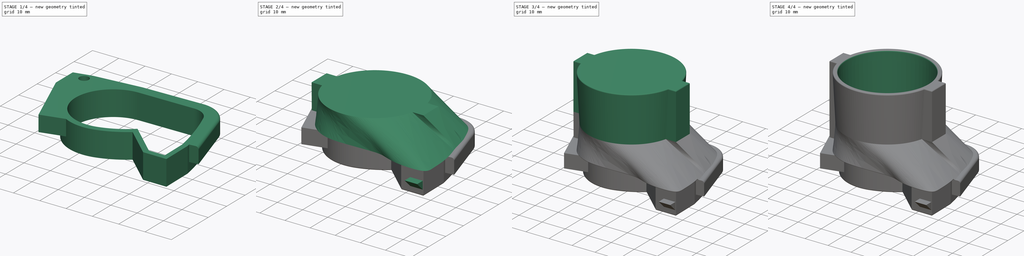
[diagram: build sequence overview — one tinted view per stage of 4, left to right]
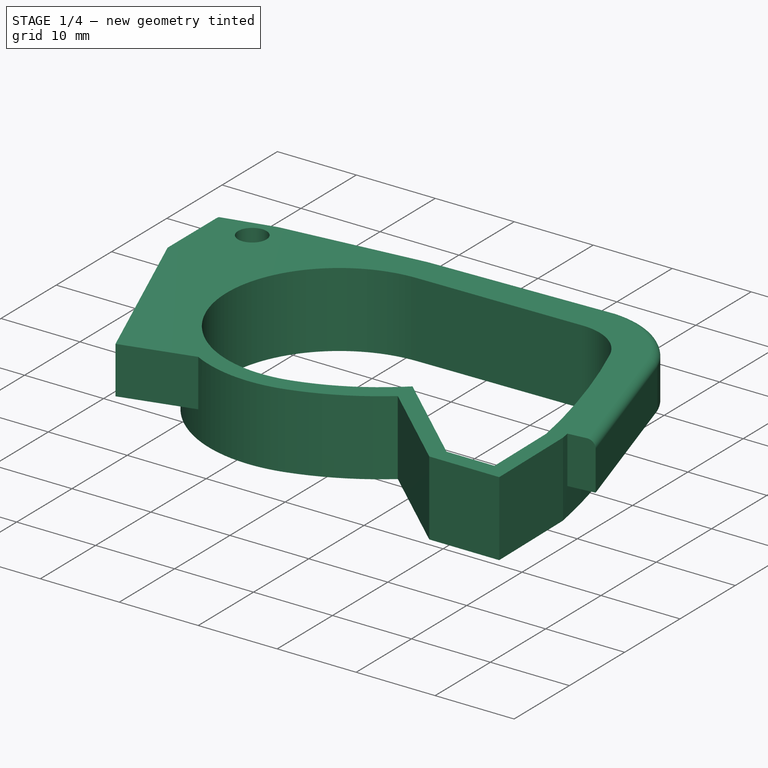
[diagram: stage 1 of 4 — iso view after this stage's code; geometry added in this stage tinted green]
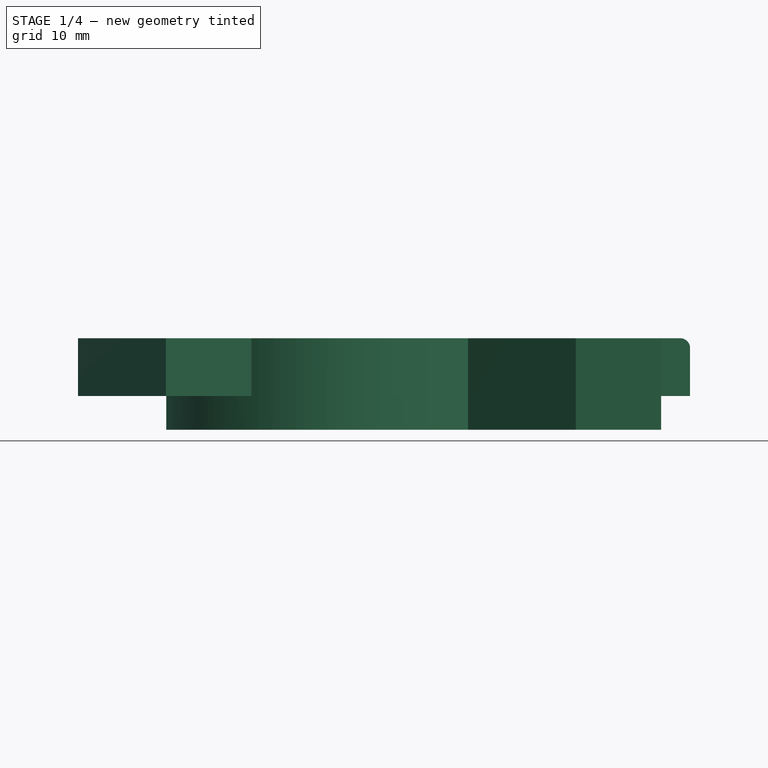
[diagram: stage 1 of 4 — front view after this stage's code; geometry added in this stage tinted green]
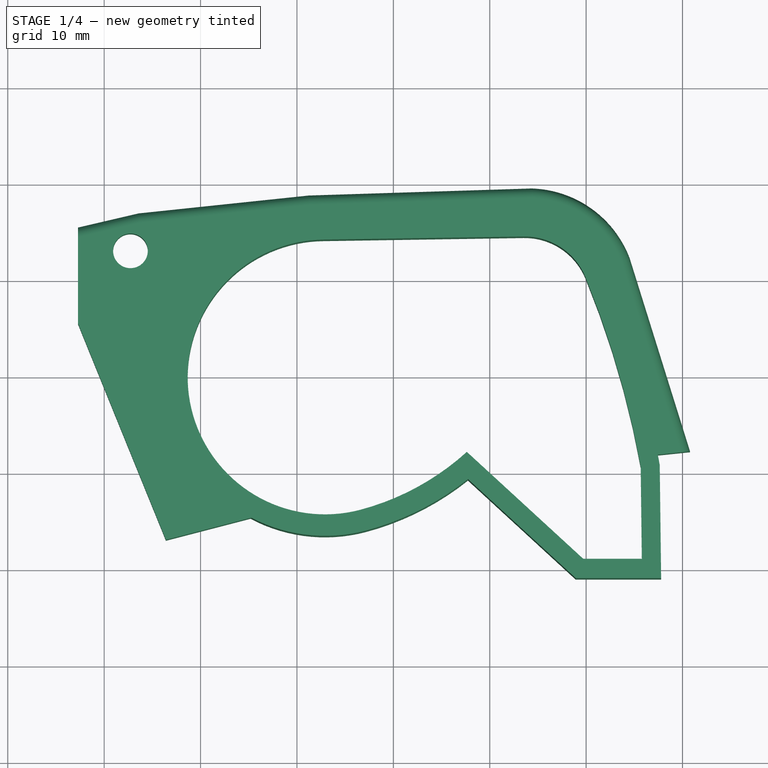
[diagram: stage 1 of 4 — top view after this stage's code; geometry added in this stage tinted green]
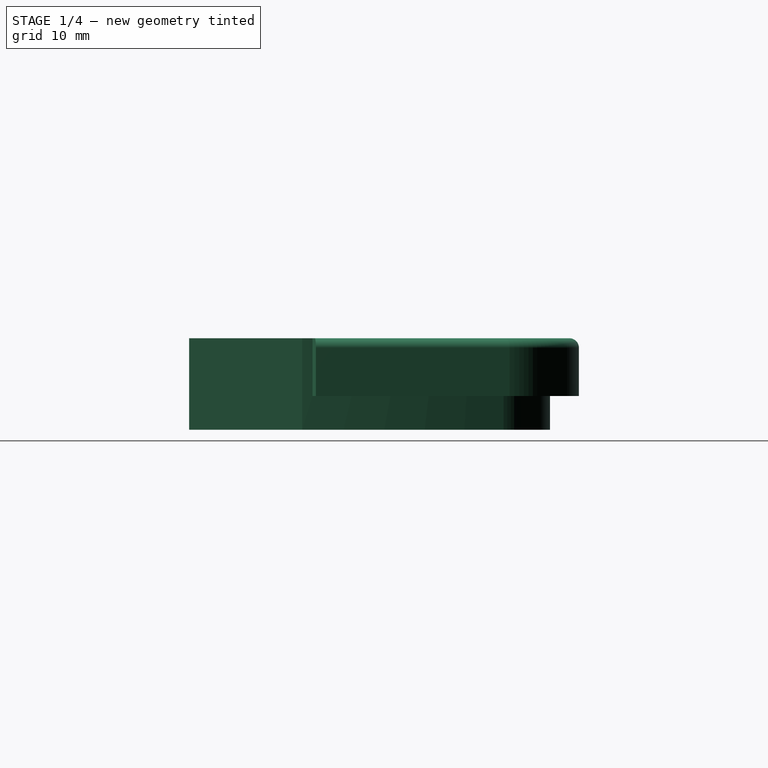
[diagram: stage 1 of 4 — right view after this stage's code; geometry added in this stage tinted green]
FCSTD DOCUMENT  (FreeCAD 0.20R27319 (Git))
Label: PlanerNozzle#2
License: All rights reserved
LicenseURL: http://en.wikipedia.org/wiki/All_rights_reserved
objects: Sketcher::SketchObject×9, PartDesign::Fillet×5, PartDesign::Pad×3, PartDesign::AdditiveLoft×2, PartDesign::SubtractiveLoft×2, Spreadsheet::Sheet×1, Image::ImagePlane×1, PartDesign::Body×1
note: 34 computed .brp shape members not serialized (recipe doc carries the construction recipe); baked Part::Feature solids carry a one-line shape summary decoded from their .brp

FEATURE [Spreadsheet::Sheet] Spreadsheet
  cells = A1=Scale; B1(Scale)=0.15; C1=29; B2=0.15; B3=0.31
FEATURE [Image::ImagePlane] ImagePlane
  Placement = pos=(0,-1,-5.1) rot=(0,0,1;0rad)
  XSize = 68.4915
  YSize = 44.4045
  expr: XSize = 456.61 * Spreadsheet.Scale
  expr: YSize = 296.03 * Spreadsheet.Scale
FEATURE [Sketcher::SketchObject] Sketch004
  AttachmentOffset = pos=(0,0,12) rot=(0,0,1;0rad)
  FullyConstrained = false
  Placement = pos=(0,0,16) rot=(0,0,1;0rad)
  Support = -> [XY_Plane]
  sketch-geometry (8):
    g0: ArcOfCircle CenterX=-6.38319 CenterY=0.230304 CenterZ=0 NormalX=0 NormalY=0 NormalZ=1 AngleXU=0 Radius=18.5 StartAngle=3.37918 EndAngle=6.0456
    g1: LineSegment StartX=-28.5159 StartY=4.39463 StartZ=0 EndX=-28.5159 EndY=-4.12375 EndZ=0
    g2: LineSegment StartX=15.9949 StartY=4.39463 StartZ=0 EndX=15.9949 EndY=-4.12375 EndZ=0
    g3: ArcOfCircle CenterX=-6.38319 CenterY=0.230304 CenterZ=0 NormalX=0 NormalY=0 NormalZ=1 AngleXU=0 Radius=18.5 StartAngle=0.227044 EndAngle=2.91455
    g4: LineSegment StartX=-28.5159 StartY=4.39463 StartZ=0 EndX=-24.4084 EndY=4.39463 EndZ=0
    g5: LineSegment StartX=-28.5159 StartY=-4.12375 StartZ=0 EndX=-24.3635 EndY=-4.12375 EndZ=0
    g6: LineSegment StartX=15.9949 StartY=4.39463 StartZ=0 EndX=11.642 EndY=4.39463 EndZ=0
    g7: LineSegment StartX=15.9949 StartY=-4.12375 StartZ=0 EndX=11.5971 EndY=-4.12375 EndZ=0
  constraints (15):
    c: Diameter(g0) = 37
    c: Equal(g0,g3)
    c: Coincident(g0,g3)
    c: Coincident(g4,g1)
    c: Coincident(g4,g3)
    c: Horizontal(g4)
    c: Coincident(g5,g1)
    c: Coincident(g5,g0)
    c: Horizontal(g5)
    c: Coincident(g6,g2)
    c: Coincident(g6,g3)
    c: Horizontal(g6)
    c: Coincident(g7,g2)
    c: Coincident(g7,g0)
    c: Horizontal(g7)
FEATURE [Sketcher::SketchObject] Sketch
  AttachmentOffset = pos=(0,0,-6) rot=(0,1,0;3.14159rad)
  FullyConstrained = false
  MapMode = 5
  Placement = pos=(0,0,6) rot=(0,0,1;0rad)
  Support = -> [XY_Plane]
  sketch-geometry (20):
    g0: ArcOfCircle CenterX=13.6146 CenterY=7.66179 CenterZ=0 NormalX=0 NormalY=0 NormalZ=1 AngleXU=0 Radius=8.8325 StartAngle=0.471596 EndAngle=1.58634
    g1: ArcOfCircle CenterX=-7.8333 CenterY=0.973365 CenterZ=0 NormalX=0 NormalY=0 NormalZ=1 AngleXU=0 Radius=15.1867 StartAngle=1.58634 EndAngle=2.18773
    g2: ArcOfCircle CenterX=-10.2795 CenterY=11.9075 CenterZ=0 NormalX=0 NormalY=0 NormalZ=1 AngleXU=0 Radius=28.8964 StartAngle=4.97292 EndAngle=5.38581
    g3: LineSegment StartX=-8.06937 StartY=16.1582 StartZ=0 EndX=13.4773 EndY=16.4932 EndZ=0
    g4: LineSegment StartX=27.6353 StartY=-9.21116 StartZ=0 EndX=27.7807 EndY=-20.9535 EndZ=0
    g5: LineSegment StartX=7.74209 StartY=-10.6807 StartZ=0 EndX=18.9241 EndY=-20.9535 EndZ=0
    g6: LineSegment StartX=18.9241 StartY=-20.9535 StartZ=0 EndX=27.7807 EndY=-20.9535 EndZ=0
    g7: ArcOfCircle CenterX=-70.8847 CenterY=-26.8834 CenterZ=0 NormalX=0 NormalY=0 NormalZ=1 AngleXU=0 Radius=100.092 StartAngle=0.17749 EndAngle=0.39545
    g8: ArcOfCircle CenterX=-7.0778 CenterY=-0.0832202 CenterZ=0 NormalX=0 NormalY=0 NormalZ=1 AngleXU=0 Radius=16.4856 StartAngle=2.18803 EndAngle=4.97262
    g9: ArcOfCircle CenterX=-7.08236 CenterY=-0.085358 CenterZ=0 NormalX=0 NormalY=0 NormalZ=1 AngleXU=0 Radius=14.257 StartAngle=1.77636 EndAngle=4.97292
    g10: ArcOfCircle CenterX=-7.08236 CenterY=-0.085358 CenterZ=0 NormalX=0 NormalY=0 NormalZ=1 AngleXU=0 Radius=14.257 StartAngle=1.58634 EndAngle=1.77636
    g11: ArcOfCircle CenterX=-10.2795 CenterY=11.9075 CenterZ=0 NormalX=0 NormalY=0 NormalZ=1 AngleXU=0 Radius=26.6686 StartAngle=4.97292 EndAngle=5.44845
    g12: LineSegment StartX=7.62505 StartY=-7.85725 StartZ=0 EndX=19.7033 EndY=-18.9535 EndZ=0
    g13: LineSegment StartX=19.7033 StartY=-18.9535 StartZ=0 EndX=25.7807 EndY=-18.9535 EndZ=0
    g14: LineSegment StartX=25.7807 StartY=-18.9535 StartZ=0 EndX=25.6622 EndY=-9.3809 EndZ=0
    g15: LineSegment StartX=-7.30398 StartY=14.1699 StartZ=0 EndX=13.5084 EndY=14.4935 EndZ=0
    g16: ArcOfCircle CenterX=13.6146 CenterY=7.66179 CenterZ=0 NormalX=0 NormalY=0 NormalZ=1 AngleXU=0 Radius=6.8325 StartAngle=0.388089 EndAngle=1.58634
    g17: ArcOfCircle CenterX=-70.8847 CenterY=-26.8834 CenterZ=0 NormalX=0 NormalY=0 NormalZ=1 AngleXU=0 Radius=98.1205 StartAngle=0.179338 EndAngle=0.388089
    g18: LineSegment StartX=3.38665 StartY=16.3363 StartZ=0 EndX=3.41774 EndY=14.3366 EndZ=0
    g19: LineSegment StartX=11.0076 StartY=-13.6806 StartZ=0 EndX=12.3606 EndY=-12.2078 EndZ=0
  constraints (37):
    c: Tangent(g3,g1) = 1.5708
    c: Coincident(g6,g5)
    c: Block(g1)
    c: Block(g2)
    c: Block(g5)
    c: Block(g6)
    c: Block(g4)
    c: Block(g0)
    c: Block(g7)
    c: Coincident(g8,g2)
    c: Tangent(g10,g9) = -1.5708
    c: Coincident(g11,g2)
    c: Tangent(g11,g9) = -1.5708
    c: Coincident(g12,g13)
    c: Horizontal(g13)
    c: Coincident(g13,g14)
    c: Coincident(g10,g15)
    c: Parallel(g15,g3)
    c: Parallel(g12,g5)
    c: Coincident(g11,g12)
    c: Coincident(g16,g0)
    c: Tangent(g16,g15) = 1.5708
    c: Coincident(g7,g17)
    c: Coincident(g17,g14)
    c: Parallel(g14,g4)
    c: DistanceX(g13,g4) = 2
    c: DistanceY(g4,g13) = 2
    c: PointOnObject(g18,g3)
    c: PointOnObject(g18,g15)
    c: Perpendicular(g3,g18)
    c: Distance(g18) = 2
    c: PointOnObject(g19,g5)
    c: Perpendicular(g19,g12)
    c: Distance(g19) = 2
    c: PointOnObject(g19,g12)
    c: Tangent(g16,g17) = -1.5708
    c: Coincident(g8,g1)
FEATURE [Sketcher::SketchObject] Sketch007
  FullyConstrained = false
  Placement = pos=(0,0,6) rot=(0,0,1;0rad)
  Support = -> [XY_Plane]
  sketch-geometry (50):
    g0: LineSegment StartX=-23.8392 StartY=4.39744 StartZ=0 EndX=-28.4368 EndY=4.39744 EndZ=0
    g1: LineSegment StartX=-28.4368 StartY=4.39744 StartZ=0 EndX=-28.4368 EndY=-4.14384 EndZ=0
    g2: LineSegment StartX=-28.4368 StartY=-4.14384 StartZ=0 EndX=-24.2957 EndY=-4.14384 EndZ=0
    g3: LineSegment StartX=25.0426 StartY=5.73672 StartZ=0 EndX=25.4758 EndY=4.06879 EndZ=0
    g4: LineSegment StartX=25.4758 StartY=4.06879 StartZ=0 EndX=26.658 EndY=-1.02928 EndZ=0
    g5: LineSegment StartX=26.658 StartY=-1.02928 StartZ=0 EndX=27.1052 EndY=-2.6711 EndZ=0
    g6-g16: Circle x11 (B-spline internal-alignment scaffolding for g17; pole/knot coordinates omitted)
    g17: BSplineCurve PolesCount=11 KnotsCount=9 Degree=3 IsPeriodic=0
    g18-g26: GeomPoint x9 (B-spline internal-alignment scaffolding for g17; pole/knot coordinates omitted)
    g27-g38: Circle x12 (B-spline internal-alignment scaffolding for g39; pole/knot coordinates omitted)
    g39: BSplineCurve PolesCount=12 KnotsCount=10 Degree=3 IsPeriodic=0
    g40-g49: GeomPoint x10 (B-spline internal-alignment scaffolding for g39; pole/knot coordinates omitted)
  constraints (20):
    c: Horizontal(g0)
    c: Coincident(g1,g0)
    c: Vertical(g1)
    c: Coincident(g2,g1)
    c: Horizontal(g2)
    c: Coincident(g3,g4)
    c: Coincident(g4,g5)
    c: Coincident(g17,g0)
    c: Weight(g6) = 1
    c: Equal(g6, g7-g16) x10
    c: Coincident(g17,g3)
    c: InternalAlignment(g6-g16 -> g17) x11
    c: InternalAlignment(g18-g26 -> g17) x9
    c: Coincident(g39,g5)
    c: Weight(g27) = 1
    c: Equal(g27, g28-g38) x11
    c: Coincident(g39,g2)
    c: InternalAlignment(g27-g38 -> g39) x12
    c: InternalAlignment(g40-g49 -> g39) x10
    c: Block(g1)
FEATURE [Sketcher::SketchObject] Sketch008
  FullyConstrained = false
  Placement = pos=(0,0,6) rot=(0,0,1;0rad)
  Support = -> [XY_Plane]
  sketch-geometry (42):
    g0-g19: Circle x20 (B-spline internal-alignment scaffolding for g20; pole/knot coordinates omitted)
    g20: BSplineCurve PolesCount=20 KnotsCount=21 Degree=3 IsPeriodic=1
    g21-g41: GeomPoint x21 (B-spline internal-alignment scaffolding for g20; pole/knot coordinates omitted)
  constraints (5):
    c: Weight(g0) = 1
    c: Equal(g0, g1-g13) x13
    c: Equal(g0, g15-g19) x5
    c: InternalAlignment(g0-g19 -> g20) x20
    c: InternalAlignment(g21-g41 -> g20) x21
FEATURE [Sketcher::SketchObject] Sketch009
  AttachmentOffset = pos=(0,0,12) rot=(0,0,1;0rad)
  FullyConstrained = true
  Placement = pos=(0,0,16) rot=(0,0,1;0rad)
  sketch-geometry (1):
    g0: Circle CenterX=-6.38319 CenterY=0.230304 CenterZ=0 NormalX=0 NormalY=0 NormalZ=1 AngleXU=0 Radius=17.25
  constraints (2):
    c: Diameter(g0) = 34.5
    c: Block(g0)
FEATURE [Sketcher::SketchObject] Sketch005
  AttachmentOffset = pos=(0,0,36) rot=(0,0,1;0rad)
  ExternalGeometry = -> [Sketch004,Sketch009]
  FullyConstrained = true
  Placement = pos=(0,0,36) rot=(0,0,1;0rad)
  Support = -> [XY_Plane]
  sketch-geometry (8):
    g0: ArcOfCircle CenterX=-6.38319 CenterY=0.230304 CenterZ=0 NormalX=0 NormalY=0 NormalZ=1 AngleXU=0 Radius=19.5 StartAngle=0.215213 EndAngle=2.92638
    g1: ArcOfCircle CenterX=-6.38319 CenterY=0.230304 CenterZ=0 NormalX=0 NormalY=0 NormalZ=1 AngleXU=0 Radius=19.5 StartAngle=3.36678 EndAngle=6.058
    g2: LineSegment StartX=-25.4333 StartY=4.39463 StartZ=0 EndX=-28.5159 EndY=4.39463 EndZ=0
    g3: LineSegment StartX=-28.5159 StartY=-4.12375 StartZ=0 EndX=-25.3909 EndY=-4.12375 EndZ=0
    g4: LineSegment StartX=-28.5159 StartY=4.39463 StartZ=0 EndX=-28.5159 EndY=-4.12375 EndZ=0
    g5: LineSegment StartX=12.667 StartY=4.39463 StartZ=0 EndX=15.9949 EndY=4.39463 EndZ=0
    g6: LineSegment StartX=15.9949 StartY=4.39463 StartZ=0 EndX=15.9949 EndY=-4.12375 EndZ=0
    g7: LineSegment StartX=15.9949 StartY=-4.12375 StartZ=0 EndX=12.6245 EndY=-4.12375 EndZ=0
  constraints (20):
    c: Diameter(g0) = 39
    c: Equal(g0,g1)
    c: Coincident(g0,g1)
    c: Horizontal(g0,g-3)
    c: Horizontal(g0,g-4)
    c: Horizontal(g1,g-4)
    c: Horizontal(g-3,g1)
    c: Coincident(g0,g2)
    c: Coincident(g2,g-3)
    c: Coincident(g-3,g3)
    c: Coincident(g3,g1)
    c: Coincident(g2,g4)
    c: Coincident(g4,g3)
    c: Coincident(g0,g5)
    c: Coincident(g5,g-4)
    c: Coincident(g5,g6)
    c: Coincident(g6,g-4)
    c: Coincident(g6,g7)
    c: Coincident(g7,g1)
    c: Coincident(g-5,g0)
FEATURE [Sketcher::SketchObject] Sketch010
  AttachmentOffset = pos=(0,0,36) rot=(0,0,1;0rad)
  ExternalGeometry = -> [Sketch009]
  FullyConstrained = true
  Placement = pos=(0,0,36) rot=(0,0,1;0rad)
  Support = -> [XY_Plane]
  sketch-geometry (1):
    g0: Circle CenterX=-6.38319 CenterY=0.230304 CenterZ=0 NormalX=0 NormalY=0 NormalZ=1 AngleXU=0 Radius=17.75
  constraints (2):
    c: Diameter(g0) = 35.5
    c: Coincident(g0,g-3)
FEATURE [Sketcher::SketchObject] Sketch011
  AttacherType = A
  FullyConstrained = false
  MapMode = 5
  Support = -> [XY_Plane]
  sketch-geometry (14):
    g0: Circle CenterX=-27.2731 CenterY=13.0055 CenterZ=0 NormalX=0 NormalY=0 NormalZ=1 AngleXU=0 Radius=1.8
    g1: LineSegment StartX=-32.7193 StartY=15.4311 StartZ=0 EndX=-26.4301 EndY=16.9002 EndZ=0
    g2: LineSegment StartX=-32.7193 StartY=15.4311 StartZ=0 EndX=-32.7181 EndY=5.47 EndZ=0
    g3: LineSegment StartX=-32.7181 StartY=5.47 StartZ=0 EndX=-23.5932 EndY=-16.9853 EndZ=0
    g4: LineSegment StartX=30.7802 StartY=-7.79865 StartZ=0 EndX=26.6318 EndY=-8.23024 EndZ=0
    g5: ArcOfCircle CenterX=14.0009 CenterY=8.23943 CenterZ=0 NormalX=0 NormalY=0 NormalZ=1 AngleXU=0 Radius=11.2555 StartAngle=0.369126 EndAngle=1.53678
    g6: LineSegment StartX=-26.4301 StartY=16.9002 StartZ=0 EndX=-8.77976 EndY=18.7554 EndZ=0
    g7: LineSegment StartX=14.3836 StartY=19.4884 StartZ=0 EndX=-8.77976 EndY=18.7554 EndZ=0
    g8: LineSegment StartX=-23.5932 StartY=-16.9853 StartZ=0 EndX=-14.014 EndY=-14.4965 EndZ=0
    g9: ArcOfCircle CenterX=-7.56686 CenterY=-0.0475203 CenterZ=0 NormalX=0 NormalY=0 NormalZ=1 AngleXU=0 Radius=15.8221 StartAngle=1.60655 EndAngle=4.2927
    g10: LineSegment StartX=-8.13248 StartY=15.7644 StartZ=0 EndX=13.4002 EndY=15.3467 EndZ=0
    g11: LineSegment StartX=24.4982 StartY=12.3004 StartZ=0 EndX=30.7802 EndY=-7.79865 EndZ=0
    g12: ArcOfCircle CenterX=14.0009 CenterY=8.23943 CenterZ=0 NormalX=0 NormalY=0 NormalZ=1 AngleXU=0 Radius=7.13263 StartAngle=0.397079 EndAngle=1.65511
    g13: LineSegment StartX=20.5785 StartY=10.9978 StartZ=0 EndX=26.6318 EndY=-8.23024 EndZ=0
  constraints (16):
    c: Coincident(g1,g6)
    c: Coincident(g6,g7)
    c: Coincident(g5,g7)
    c: Coincident(g9,g10)
    c: Coincident(g8,g9)
    c: Coincident(g3,g8)
    c: Coincident(g1,g2)
    c: Coincident(g2,g3)
    c: Coincident(g11,g5)
    c: Coincident(g4,g11)
    c: Diameter(g0) = 3.6
    c: Block(g9)
    c: Coincident(g12,g5)
    c: Coincident(g12,g10)
    c: Coincident(g13,g12)
    c: Coincident(g13,g4)
FEATURE [PartDesign::Pad] Pad  label="Base"
  Direction = (0,0,1)
  Length = 6
  Length2 = 0
  Profile = -> Sketch011
  ReferenceAxis = -> Sketch011 [N_Axis]
  Type = 0
FEATURE [PartDesign::Fillet] Fillet  label="BaseFillet"
  Base = -> Pad [Edge10,Edge13,Edge16,Edge19,Edge22]
  BaseFeature = -> Pad
  Radius = 1
  SupportTransform = false
FEATURE [PartDesign::Pad] Pad001  label="Rim"
  BaseFeature = -> Fillet
  Direction = (-1e-16,0,1)
  Length = 9.5
  Length2 = 0
  Profile = -> Sketch
  ReferenceAxis = -> Sketch [N_Axis]
  Reversed = true
  Type = 0
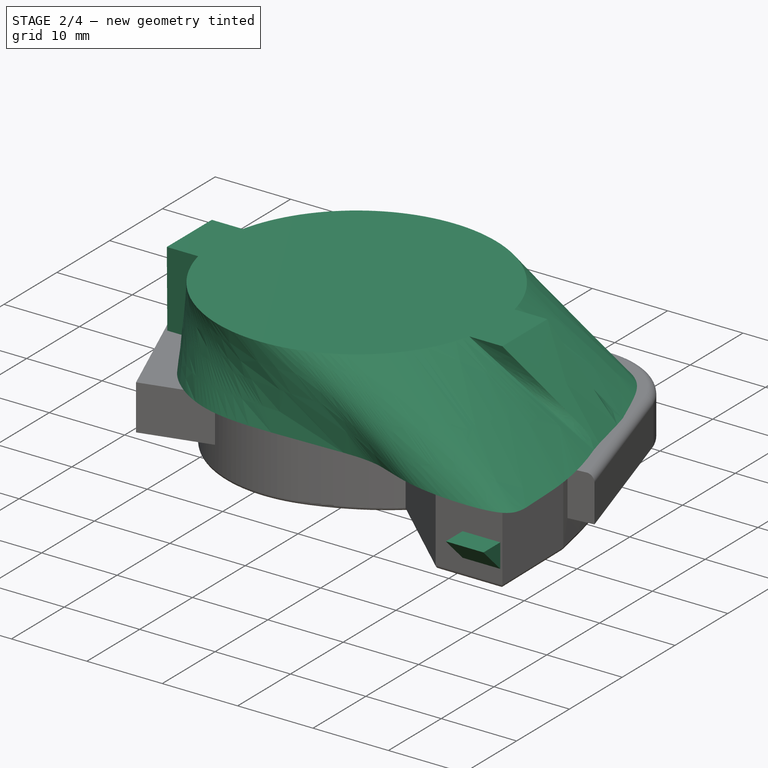
[diagram: stage 2 of 4 — iso view after this stage's code; geometry added in this stage tinted green]
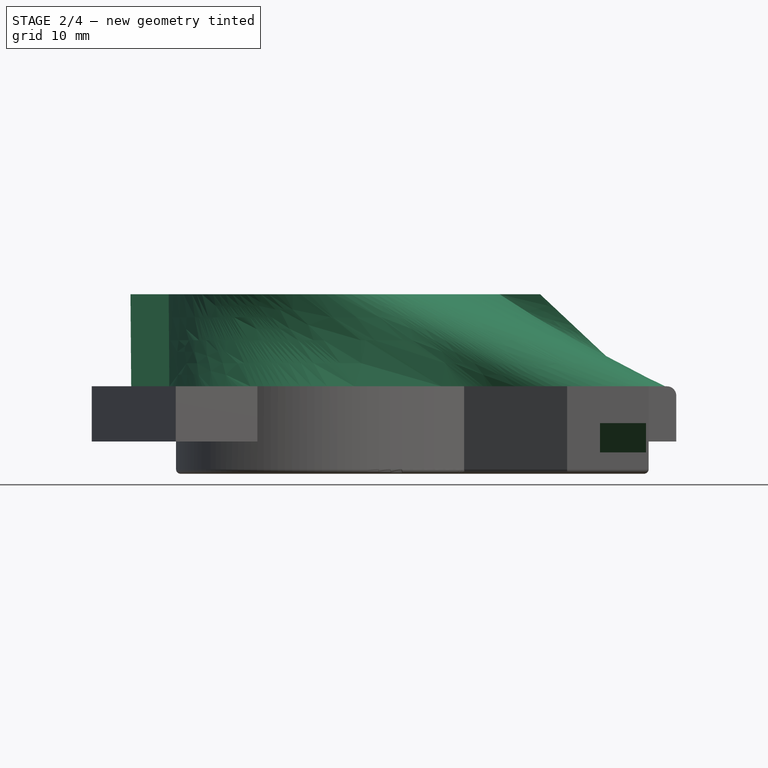
[diagram: stage 2 of 4 — front view after this stage's code; geometry added in this stage tinted green]
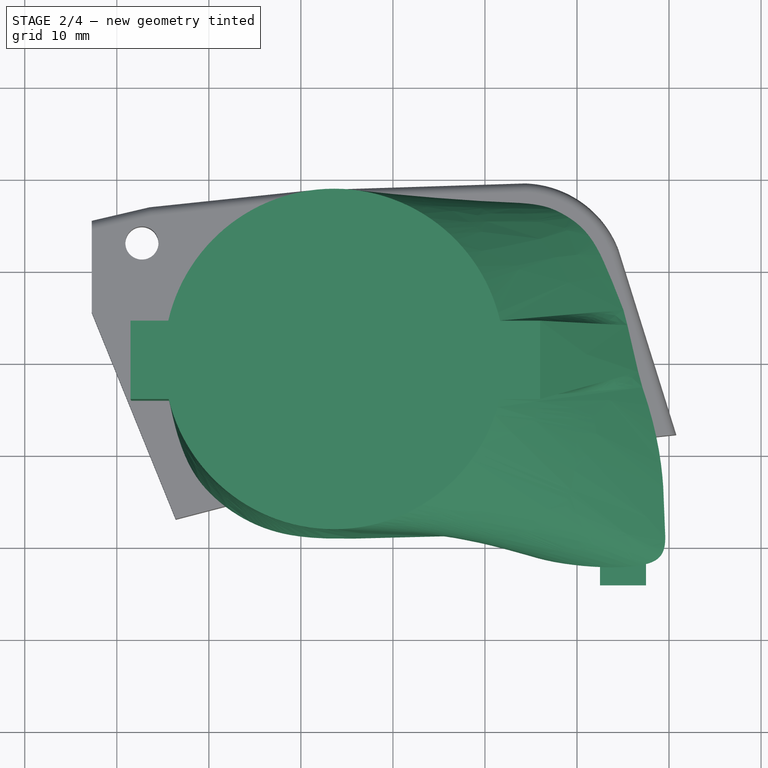
[diagram: stage 2 of 4 — top view after this stage's code; geometry added in this stage tinted green]
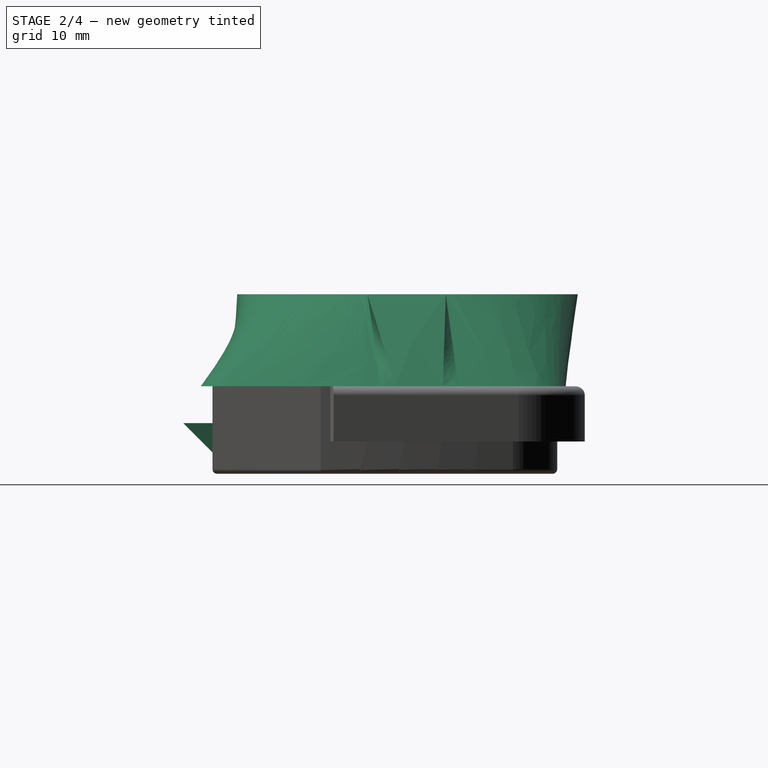
[diagram: stage 2 of 4 — right view after this stage's code; geometry added in this stage tinted green]
FEATURE [Sketcher::SketchObject] Sketch006
  AttachmentOffset = pos=(0,1,27.5) rot=(0,0,1;0rad)
  ExternalGeometry = -> [Pad001]
  FullyConstrained = false
  Placement = pos=(27.5,0,0) rot=(0.57735,0.57735,0.57735;2.0944rad)
  Support = -> [YZ_Plane]
  sketch-geometry (4):
    g0: LineSegment StartX=-18.9221 StartY=2 StartZ=0 EndX=-18.9221 EndY=-2.27636 EndZ=0
    g1: LineSegment StartX=-18.9221 StartY=-2.27636 StartZ=0 EndX=-19.8606 EndY=-2.27636 EndZ=0
    g2: LineSegment StartX=-18.9221 StartY=2 StartZ=0 EndX=-24.137 EndY=2 EndZ=0
    g3: LineSegment StartX=-24.137 StartY=2 StartZ=0 EndX=-19.8606 EndY=-2.27636 EndZ=0
  constraints (9):
    c: Coincident(g0,g1)
    c: Horizontal(g1)
    c: Vertical(g0)
    c: Horizontal(g2)
    c: Coincident(g2,g3)
    c: Coincident(g3,g1)
    c: Coincident(g0,g2)
    c: DistanceY(g2,g-3) = 3
    c: Angle(g3,g2) = 0.785398
FEATURE [PartDesign::Fillet] Fillet005  label="RimFillet"
  Base = -> Pad001 [Edge49,Edge46,Edge44,Edge86,Edge87,Edge88,Edge89,Edge54,Edge50]
  BaseFeature = -> Pad001
  Radius = 0.5
  SupportTransform = false
FEATURE [PartDesign::Pad] Pad002  label="Tab"
  BaseFeature = -> Fillet005
  Direction = (1,0,0)
  Length = 5
  Length2 = 10
  Profile = -> Sketch006
  ReferenceAxis = -> Sketch006 [N_Axis]
  Reversed = true
  Type = 0
FEATURE [PartDesign::AdditiveLoft] AdditiveLoft  label="TransitionOuterLoft"
  BaseFeature = -> Pad002
  Closed = false
  Profile = -> Sketch007
  Ruled = false
  Sections = -> [Sketch004]
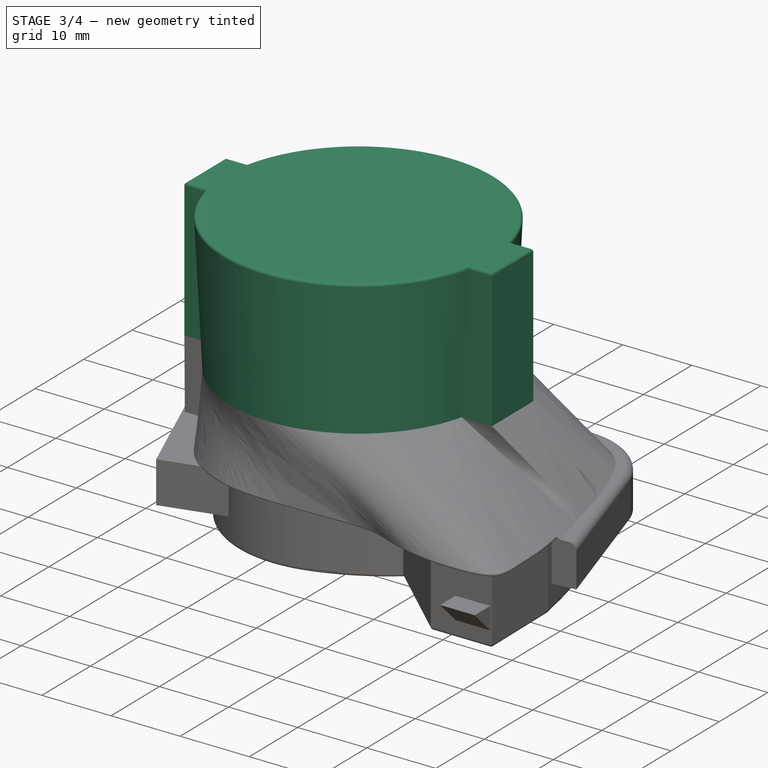
[diagram: stage 3 of 4 — iso view after this stage's code; geometry added in this stage tinted green]
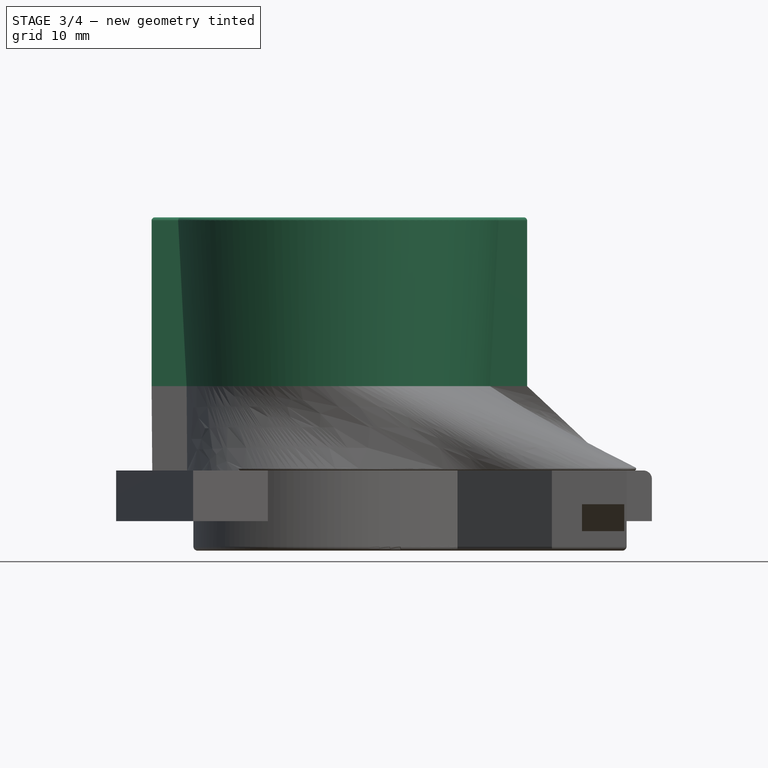
[diagram: stage 3 of 4 — front view after this stage's code; geometry added in this stage tinted green]
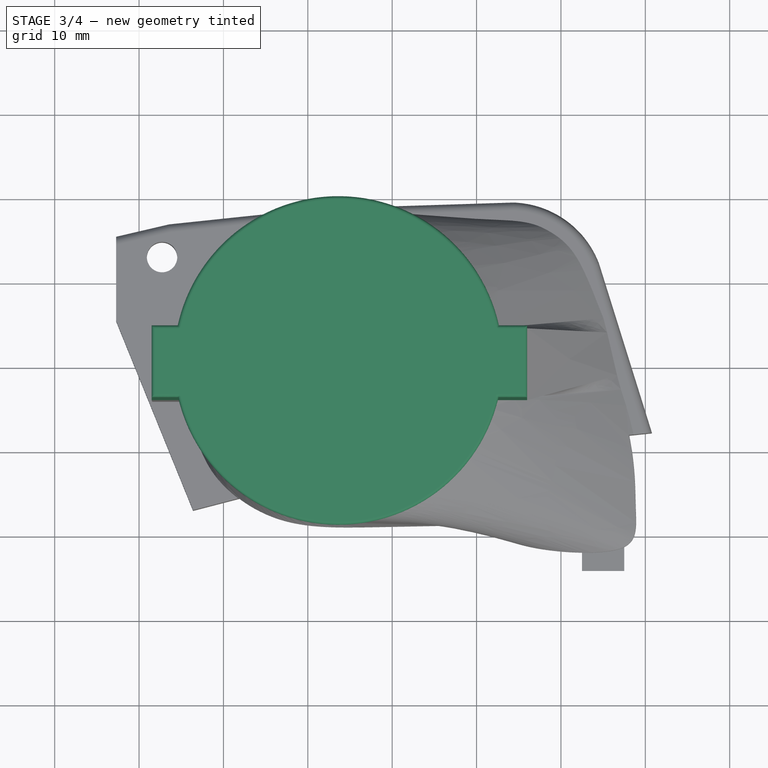
[diagram: stage 3 of 4 — top view after this stage's code; geometry added in this stage tinted green]
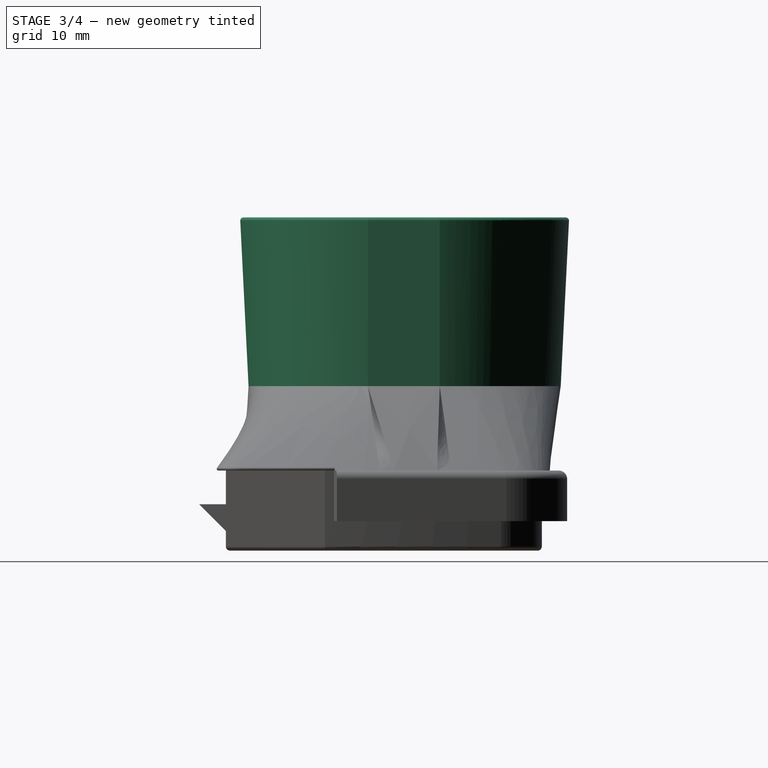
[diagram: stage 3 of 4 — right view after this stage's code; geometry added in this stage tinted green]
FEATURE [PartDesign::AdditiveLoft] AdditiveLoft001  label="OuterLoft"
  BaseFeature = -> AdditiveLoft
  Closed = false
  Profile = -> Sketch004
  Ruled = false
  Sections = -> [Sketch005]
FEATURE [PartDesign::Fillet] Fillet007  label="OuterFillet"
  Base = -> AdditiveLoft001 [Face66]
  BaseFeature = -> AdditiveLoft001
  Radius = 0.4
  SupportTransform = false
FEATURE [PartDesign::Fillet] Fillet006  label="LoftFillet"
  Base = -> Fillet007 [Edge13]
  BaseFeature = -> Fillet007
  Radius = 0.2
  SupportTransform = false
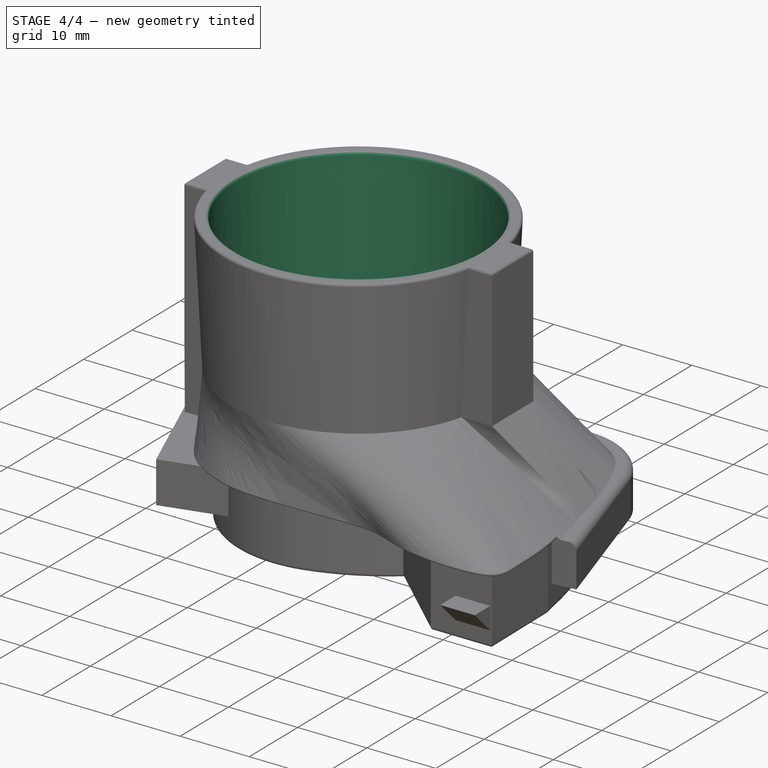
[diagram: stage 4 of 4 — iso view after this stage's code; geometry added in this stage tinted green]
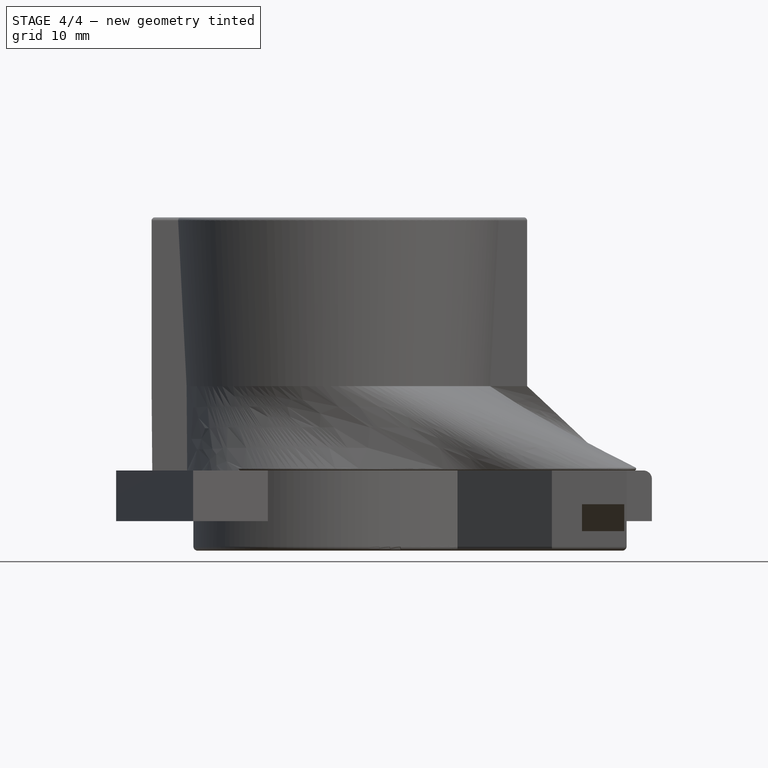
[diagram: stage 4 of 4 — front view after this stage's code; geometry added in this stage tinted green]
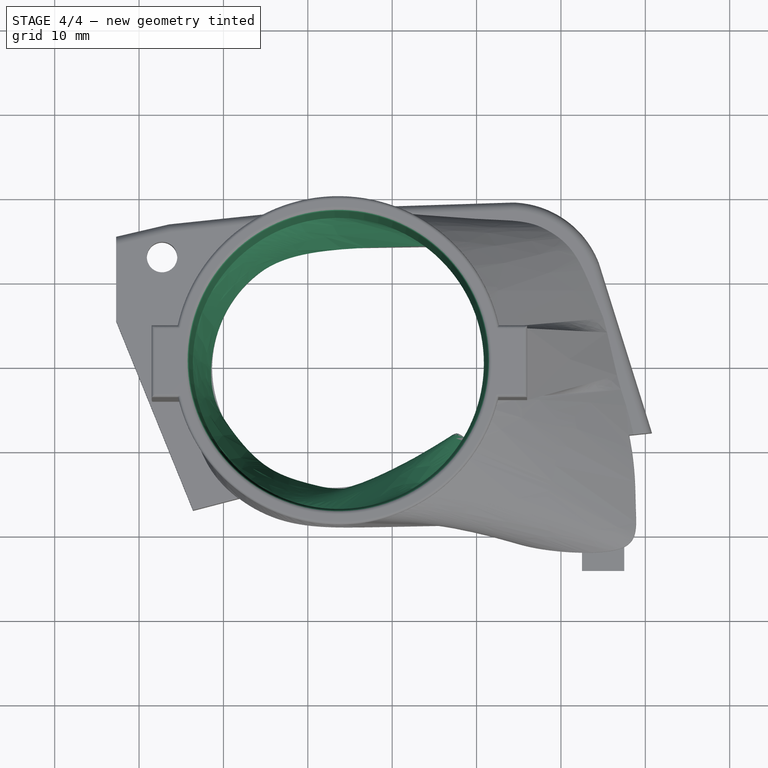
[diagram: stage 4 of 4 — top view after this stage's code; geometry added in this stage tinted green]
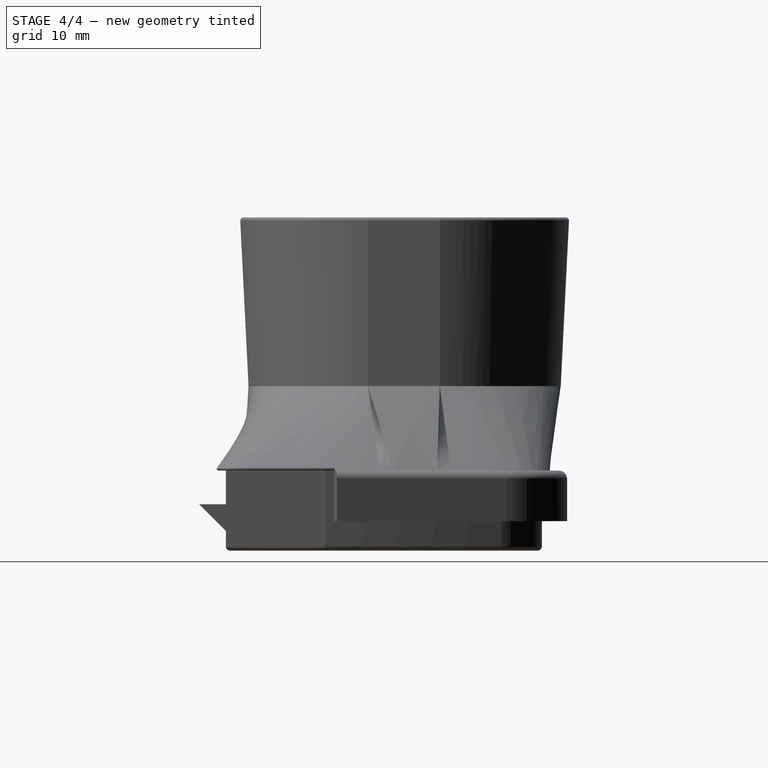
[diagram: stage 4 of 4 — right view after this stage's code; geometry added in this stage tinted green]
FEATURE [PartDesign::SubtractiveLoft] SubtractiveLoft  label="TransitionInnerLoft"
  BaseFeature = -> Fillet006
  Closed = false
  Profile = -> Sketch008
  Ruled = false
  Sections = -> [Sketch009]
FEATURE [PartDesign::SubtractiveLoft] SubtractiveLoft001  label="InnerLoft"
  BaseFeature = -> SubtractiveLoft
  Closed = false
  Profile = -> Sketch009
  Ruled = false
  Sections = -> [Sketch010]
FEATURE [PartDesign::Fillet] Fillet008
  Base = -> SubtractiveLoft001 [Edge152]
  BaseFeature = -> SubtractiveLoft001
  Radius = 0.5
  SupportTransform = false
FEATURE [PartDesign::Body] Body
  Group = -> [Pad,Fillet,Pad001,Fillet005,Pad002,Sketch004,Sketch005,Sketch006,Sketch,Sketch007,AdditiveLoft,AdditiveLoft001,Fillet007,Fillet006,Sketch008,Sketch009,SubtractiveLoft,Sketch010,SubtractiveLoft001,Sketch011,Fillet008]
  Origin = -> Origin
  Tip = -> Fillet008
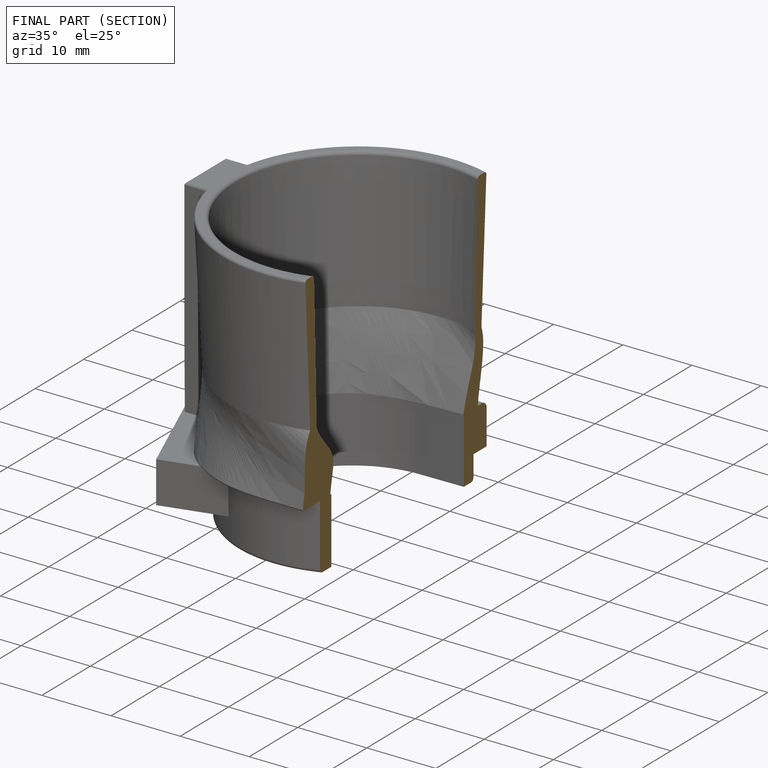
[diagram: finished part — half-section view (interior)]
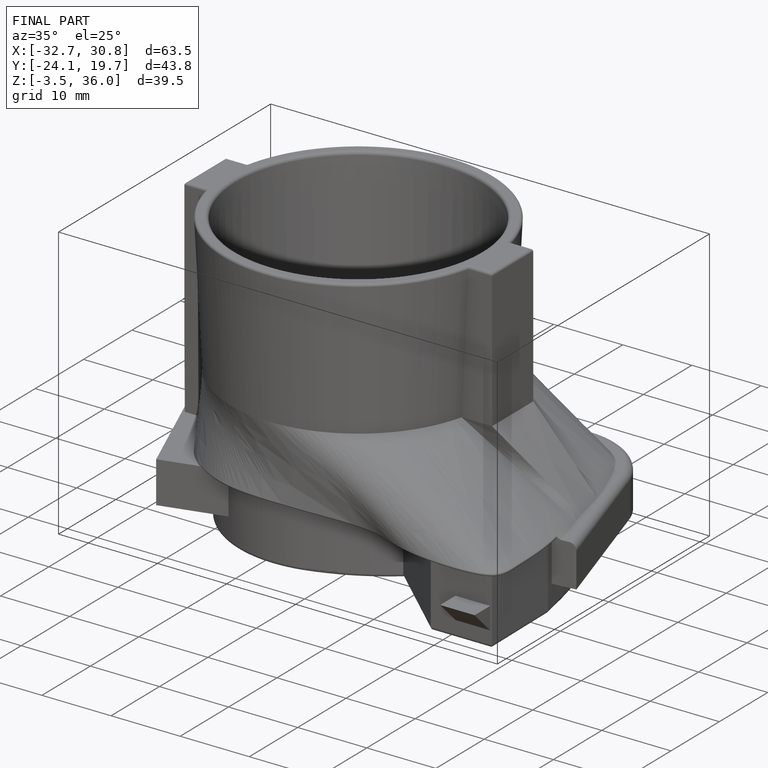
[diagram: finished part — iso view with bounding-box wireframe]
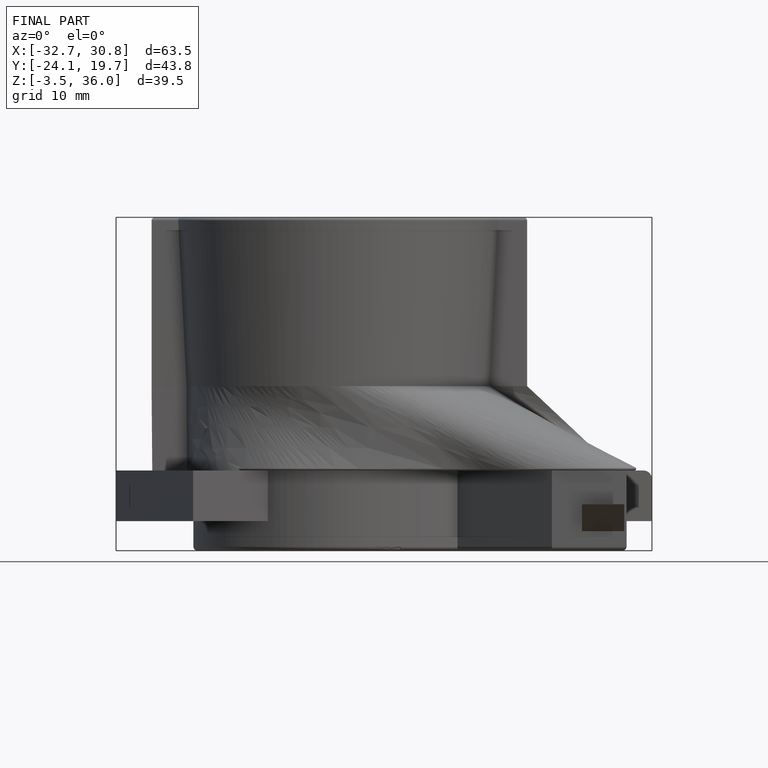
[diagram: finished part — front view with bounding-box wireframe]
